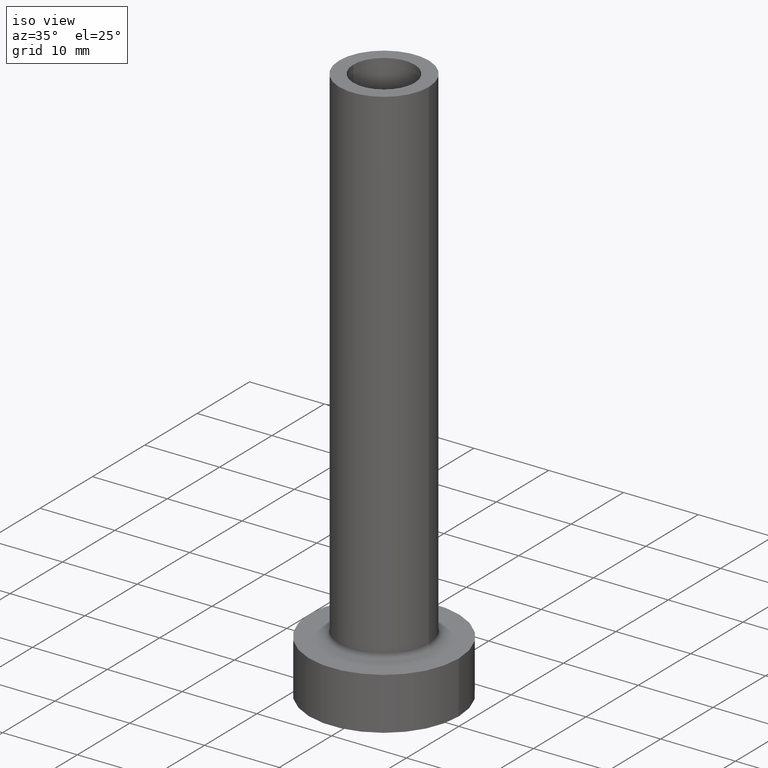
[diagram: clean part render]
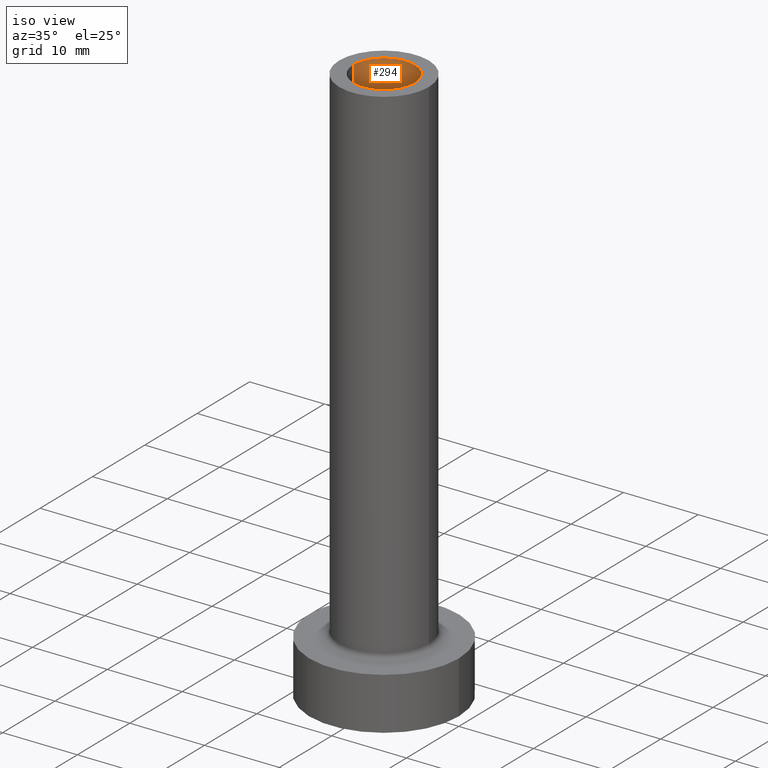
[diagram: same view with one face highlighted and labeled with its STEP entity id]
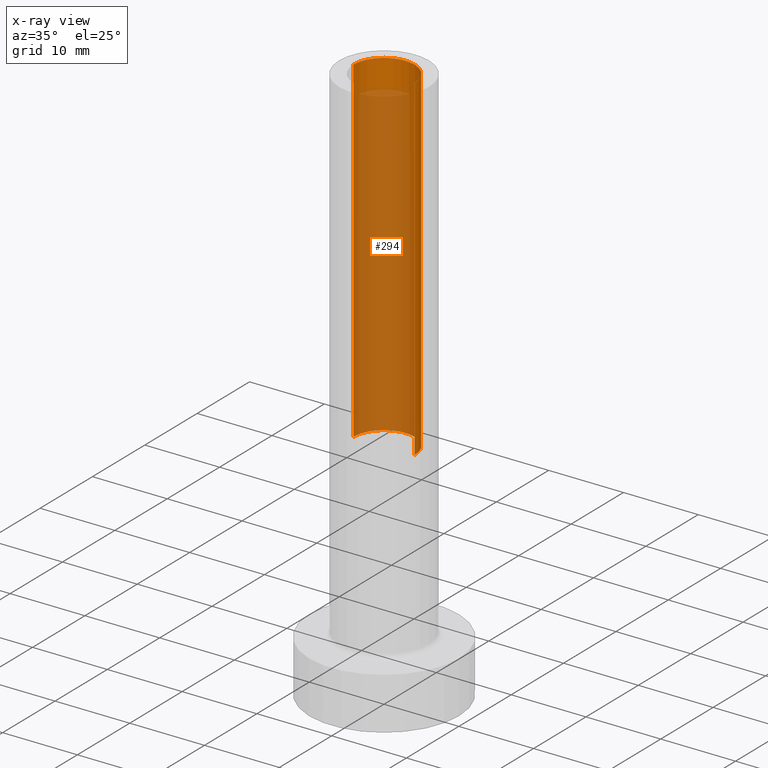
[diagram: x-ray of the same camera — body ghosted, the highlighted face saturated]
A machine part, iso view. The second image highlights one B-rep face of the part: STEP entity #294.
The next image is the same camera in x-ray: the body ghosted, the highlighted face saturated — about 74% of this face is hidden behind the body in this view.
In plain terms, the highlighted cylindrical surface (partial cylindrical patch) has radius 4.1 mm, axis along (0, 0, -1).
Its self-contained STEP definition (entity closure, byte-faithful):
#16 = DIRECTION ( 'NONE',  ( 0.000000000000000000, 0.000000000000000000, 1.000000000000000000 ) ) ;
#22 = CARTESIAN_POINT ( 'NONE',  ( -4.099999999999999645, 0.000000000000000000, 75.00000000000001421 ) ) ;
#46 = CARTESIAN_POINT ( 'NONE',  ( 0.000000000000000000, 0.000000000000000000, 75.00000000000001421 ) ) ;
#49 = DIRECTION ( 'NONE',  ( 1.000000000000000000, 0.000000000000000000, 0.000000000000000000 ) ) ;
#59 = VERTEX_POINT ( 'NONE', #215 ) ;
#77 = DIRECTION ( 'NONE',  ( 0.000000000000000000, 0.000000000000000000, 1.000000000000000000 ) ) ;
#86 = EDGE_CURVE ( 'NONE', #433, #59, #177, .T. ) ;
#96 = AXIS2_PLACEMENT_3D ( 'NONE', #46, #77, #120 ) ;
#104 = CARTESIAN_POINT ( 'NONE',  ( 0.000000000000000000, 0.000000000000000000, 75.00000000000001421 ) ) ;
#105 = FACE_OUTER_BOUND ( 'NONE', #257, .T. ) ;
#118 = LINE ( 'NONE', #334, #187 ) ;
#120 = DIRECTION ( 'NONE',  ( 1.000000000000000000, 0.000000000000000000, 0.000000000000000000 ) ) ;
#130 = LINE ( 'NONE', #382, #366 ) ;
#131 = EDGE_CURVE ( 'NONE', #180, #174, #297, .T. ) ;
#154 = EDGE_CURVE ( 'NONE', #174, #59, #118, .T. ) ;
#155 = CARTESIAN_POINT ( 'NONE',  ( 4.099999999999999645, 5.021051876504146399E-16, 30.00000000000001421 ) ) ;
#174 = VERTEX_POINT ( 'NONE', #22 ) ;
#177 = CIRCLE ( 'NONE', #289, 4.099999999999999645 ) ;
#180 = VERTEX_POINT ( 'NONE', #357 ) ;
#187 = VECTOR ( 'NONE', #401, 1000.000000000000000 ) ;
#202 = CARTESIAN_POINT ( 'NONE',  ( 0.000000000000000000, 0.000000000000000000, 30.00000000000001421 ) ) ;
#215 = CARTESIAN_POINT ( 'NONE',  ( -4.099999999999999645, 0.000000000000000000, 30.00000000000001421 ) ) ;
#237 = ORIENTED_EDGE ( 'NONE', *, *, #86, .F. ) ;
#251 = DIRECTION ( 'NONE',  ( 0.000000000000000000, 0.000000000000000000, -1.000000000000000000 ) ) ;
#255 = EDGE_CURVE ( 'NONE', #180, #433, #130, .T. ) ;
#257 = EDGE_LOOP ( 'NONE', ( #451, #331, #314, #237 ) ) ;
#285 = CYLINDRICAL_SURFACE ( 'NONE', #309, 4.099999999999999645 ) ;
#289 = AXIS2_PLACEMENT_3D ( 'NONE', #202, #16, #49 ) ;
#294 = ADVANCED_FACE ( 'NONE', ( #105 ), #285, .F. ) ;
#297 = CIRCLE ( 'NONE', #96, 4.099999999999999645 ) ;
#309 = AXIS2_PLACEMENT_3D ( 'NONE', #104, #376, #317 ) ;
#314 = ORIENTED_EDGE ( 'NONE', *, *, #154, .T. ) ;
#317 = DIRECTION ( 'NONE',  ( -1.000000000000000000, 0.000000000000000000, 0.000000000000000000 ) ) ;
#331 = ORIENTED_EDGE ( 'NONE', *, *, #131, .T. ) ;
#334 = CARTESIAN_POINT ( 'NONE',  ( -4.099999999999999645, 0.000000000000000000, 75.00000000000001421 ) ) ;
#357 = CARTESIAN_POINT ( 'NONE',  ( 4.099999999999999645, 5.021051876504146399E-16, 75.00000000000001421 ) ) ;
#366 = VECTOR ( 'NONE', #251, 1000.000000000000000 ) ;
#376 = DIRECTION ( 'NONE',  ( 0.000000000000000000, 0.000000000000000000, -1.000000000000000000 ) ) ;
#382 = CARTESIAN_POINT ( 'NONE',  ( 4.099999999999999645, 5.021051876504146399E-16, 75.00000000000001421 ) ) ;
#401 = DIRECTION ( 'NONE',  ( 0.000000000000000000, 0.000000000000000000, -1.000000000000000000 ) ) ;
#433 = VERTEX_POINT ( 'NONE', #155 ) ;
#451 = ORIENTED_EDGE ( 'NONE', *, *, #255, .F. ) ;